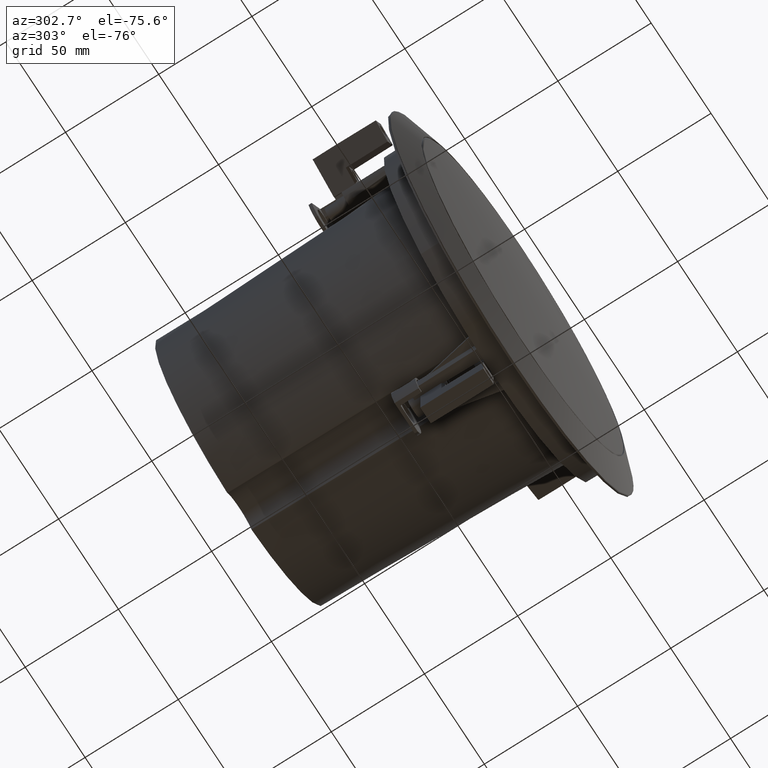
[diagram: clean part render]
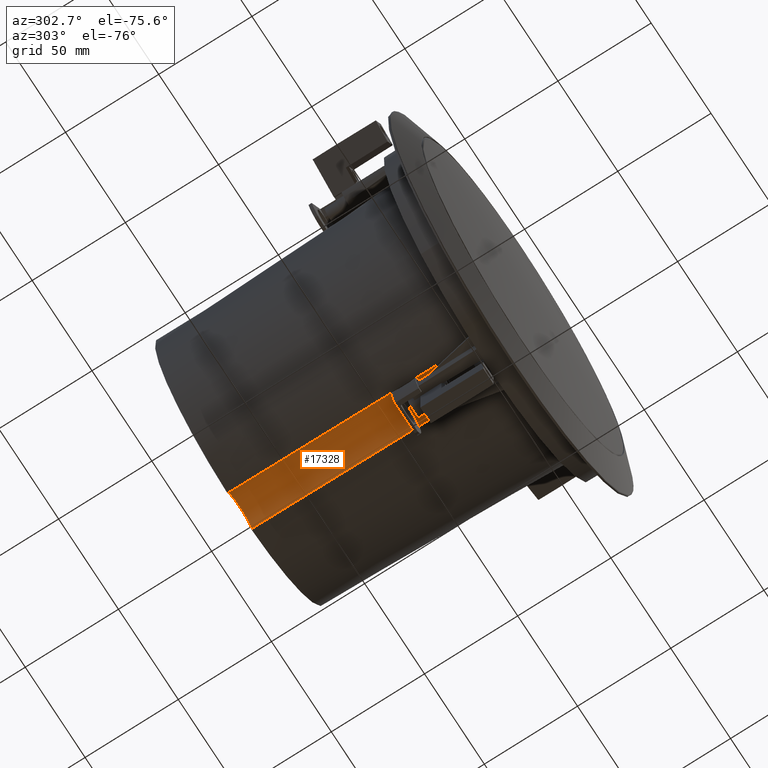
[diagram: same view with one face highlighted and labeled with its STEP entity id]
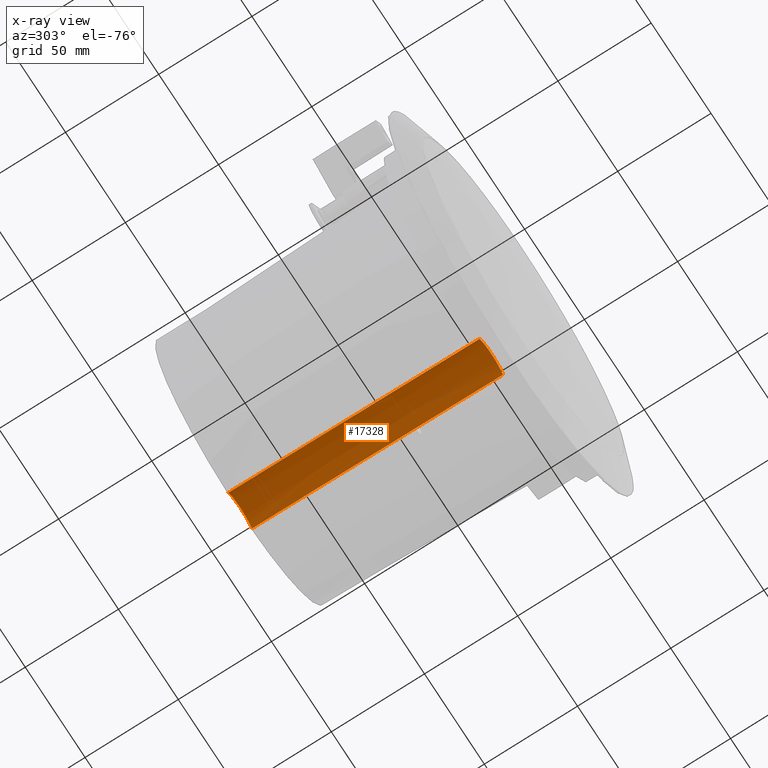
[diagram: x-ray of the same camera — body ghosted, the highlighted face saturated]
A machine part, auxiliary view. The second image highlights one B-rep face of the part: STEP entity #17328.
The next image is the same camera in x-ray: the body ghosted, the highlighted face saturated — about 2% of this face is hidden behind the body in this view.
In plain terms, the highlighted face is a freeform B-spline surface patch.
Its self-contained STEP definition (entity closure, byte-faithful):
#113 = CARTESIAN_POINT ( 'NONE',  ( -4.839189402952007946, -1.626303258728258623E-15, -69.36519278996399862 ) ) ;
#604 = CARTESIAN_POINT ( 'NONE',  ( -3.423557121188766317, 134.7149858649666214, -64.58662804208410080 ) ) ;
#616 = FACE_OUTER_BOUND ( 'NONE', #7353, .T. ) ;
#691 = CARTESIAN_POINT ( 'NONE',  ( 0.2501244078058433851, 134.7157053607339492, -64.06819588260950127 ) ) ;
#881 = CARTESIAN_POINT ( 'NONE',  ( -9.887865457490201848, 1.626321693163071915E-16, -74.02915081750236936 ) ) ;
#1186 = CARTESIAN_POINT ( 'NONE',  ( -7.728493577244043067, 1.788933584601082316E-15, -71.30815637181038369 ) ) ;
#1263 = CARTESIAN_POINT ( 'NONE',  ( -8.788407544057429632, 1.788933584601082316E-15, -72.37001803805209477 ) ) ;
#1462 = EDGE_CURVE ( 'NONE', #9962, #12218, #8389, .T. ) ;
#1798 = VERTEX_POINT ( 'NONE', #8481 ) ;
#1906 = CARTESIAN_POINT ( 'NONE',  ( 9.360104050637511719, 4.878909776184753190E-16, -73.17177890307527832 ) ) ;
#1947 = CARTESIAN_POINT ( 'NONE',  ( -0.9972680787748221531, 134.7157054546374013, -64.06812643824353870 ) ) ;
#1979 = B_SPLINE_CURVE_WITH_KNOTS ( 'NONE', 3,
 ( #8742, #4309, #1263, #1186, #2897, #8646, #5789, #13088, #113, #6929, #5891, #9790, #15598, #2616, #17256, #12736, #7012, #12831, #18691, #5613, #7502, #12061, #6067, #17543, #6251, #1906, #4499, #17907 ),
 .UNSPECIFIED., .F., .F.,
 ( 4, 2, 2, 2, 2, 2, 2, 2, 2, 2, 2, 2, 2, 4 ),
 ( 0.0003320815778961482196, 0.003309364713364581784, 0.004798006281098813122, 0.006286647848833044894, 0.007775289416567275798, 0.009263930984301508437, 0.01075257255203574021, 0.01224121411976997371, 0.01521849725523843552, 0.01819578039070689907, 0.01968442195844113257, 0.02117306352617536261, 0.02266170509390959611, 0.02415034666164382962 ),
 .UNSPECIFIED. ) ;
#2059 = CARTESIAN_POINT ( 'NONE',  ( 6.123241062972636151, 134.7132524646011689, -65.84114908314094805 ) ) ;
#2143 = CARTESIAN_POINT ( 'NONE',  ( -6.115727549763790627, 134.7132589719300881, -65.83634342606684697 ) ) ;
#2338 = CARTESIAN_POINT ( 'NONE',  ( -9.885558093869720508, 14.83182045151982820, -73.55899817543883046 ) ) ;
#2418 = CARTESIAN_POINT ( 'NONE',  ( 9.867001229435196308, 127.4559886287432988, -69.98726148090898391 ) ) ;
#2616 = CARTESIAN_POINT ( 'NONE',  ( -1.006083273466860994, 5.204170427930422861E-15, -68.33468858669769475 ) ) ;
#2649 = CARTESIAN_POINT ( 'NONE',  ( 8.403242768209999269, -2.796723514600030214, -71.57881013690000316 ) ) ;
#2897 = CARTESIAN_POINT ( 'NONE',  ( -7.348648249159249524, 3.740497495074990297E-15, -70.97466006749505141 ) ) ;
#3199 = CARTESIAN_POINT ( 'NONE',  ( 2.468547278013440760, 134.7153561202417791, -64.32390392234570697 ) ) ;
#3292 = CARTESIAN_POINT ( 'NONE',  ( -3.896588689990045040, 134.7147577211399039, -64.74729794012424122 ) ) ;
#3327 = CARTESIAN_POINT ( 'NONE',  ( -9.865737432637896376, 134.7078376317815582, -69.75716729557701967 ) ) ;
#3368 = CARTESIAN_POINT ( 'NONE',  ( 7.704769723789015146, 134.7116128410847580, -67.05316379467313936 ) ) ;
#3378 = CARTESIAN_POINT ( 'NONE',  ( -8.403242768209999269, 91.07336891721998029, -68.62882363862999568 ) ) ;
#3483 = B_SPLINE_SURFACE_WITH_KNOTS ( 'NONE', 3, 3, ( 
 ( #4894, #17864, #13814, #16783 ),
 ( #3751, #4991, #9255, #9532 ),
 ( #7823, #10592, #3378, #15048 ),
 ( #9142, #16596, #16480, #14937 ),
 ( #15142, #7730, #10670, #13598 ),
 ( #2649, #14383, #5269, #11460 ),
 ( #12764, #18322, #16996, #5537 ),
 ( #6668, #9730, #18616, #14216 ) ),
 .UNSPECIFIED., .F., .F., .F.,
 ( 4, 1, 1, 1, 1, 4 ),
 ( 4, 4 ),
 ( 0.0000000000000000000, 0.08032568937057009417, 0.3601085631235230178, 0.6398914368764769822, 0.9196743106294299475, 1.000000000000000000 ),
 ( 0.0000000000000000000, 1.000000000000000000 ),
 .UNSPECIFIED. ) ;
#3560 = CARTESIAN_POINT ( 'NONE',  ( 3.425275277422660025, 134.7149985396833074, -64.57859965497345911 ) ) ;
#3751 = CARTESIAN_POINT ( 'NONE',  ( -9.976210660033000721, -2.713413468800024653, -74.22977877789999468 ) ) ;
#3837 = CARTESIAN_POINT ( 'NONE',  ( -9.869685551943407020, 112.0529574244100104, -70.47598482789537400 ) ) ;
#4309 = CARTESIAN_POINT ( 'NONE',  ( -9.391220798877959908, -1.301042606982605124E-15, -73.15841826609003817 ) ) ;
#4499 = CARTESIAN_POINT ( 'NONE',  ( 9.638836358701198037, -9.757819552369524129E-16, -73.59254541199905475 ) ) ;
#4894 = CARTESIAN_POINT ( 'NONE',  ( -10.27188773079000050, -2.693989472500018856, -74.84786036300999967 ) ) ;
#4991 = CARTESIAN_POINT ( 'NONE',  ( -9.976210660033000721, 44.22163274706998948, -72.75478552875999583 ) ) ;
#5240 = CARTESIAN_POINT ( 'NONE',  ( -9.884387761990073074, 22.24772982079445427, -73.32389491956773497 ) ) ;
#5269 = CARTESIAN_POINT ( 'NONE',  ( 8.403242768209999269, 91.07336891721998029, -68.62882363862999568 ) ) ;
#5431 = CARTESIAN_POINT ( 'NONE',  ( 9.880696121411476796, 45.63790877251823019, -72.58236579934452948 ) ) ;
#5537 = CARTESIAN_POINT ( 'NONE',  ( 9.976210660033000721, 138.0917251789579723, -69.80479903047999812 ) ) ;
#5613 = CARTESIAN_POINT ( 'NONE',  ( 6.134114374389133317, 4.716279450311940344E-15, -70.08147228196445155 ) ) ;
#5707 = VERTEX_POINT ( 'NONE', #8172 ) ;
#5738 = CARTESIAN_POINT ( 'NONE',  ( -9.335715033577923094, 134.7090364111077463, -68.90382484216706871 ) ) ;
#5789 = CARTESIAN_POINT ( 'NONE',  ( -6.147054055668925265, 5.041540102057595618E-15, -70.08980133827847681 ) ) ;
#5891 = CARTESIAN_POINT ( 'NONE',  ( -3.440550504086456129, 5.204170427930416550E-15, -68.81694897095601959 ) ) ;
#6067 = CARTESIAN_POINT ( 'NONE',  ( 7.719730091710763631, 1.626303258728264540E-16, -71.30034430120200284 ) ) ;
#6251 = CARTESIAN_POINT ( 'NONE',  ( 8.750567258948050764, 4.878909776184766995E-16, -72.37563252952342907 ) ) ;
#6365 = CARTESIAN_POINT ( 'NONE',  ( 1.983598773064808363, 134.7154868800086547, -64.22864942941282607 ) ) ;
#6550 = CARTESIAN_POINT ( 'NONE',  ( 9.872026562536182936, 98.12047993639468757, -70.91790950467866139 ) ) ;
#6668 = CARTESIAN_POINT ( 'NONE',  ( 10.27188773079000050, -2.693989472500018856, -74.84786036300999967 ) ) ;
#6837 = CARTESIAN_POINT ( 'NONE',  ( -9.882047098230746229, 37.07954855953845907, -72.85368840781934807 ) ) ;
#6929 = CARTESIAN_POINT ( 'NONE',  ( -3.912068594470100358, -1.626303258728251918E-15, -68.97755959733346742 ) ) ;
#7012 = CARTESIAN_POINT ( 'NONE',  ( 1.981375865008340176, -8.131516293641254659E-16, -68.42720938291037669 ) ) ;
#7162 = CARTESIAN_POINT ( 'NONE',  ( -9.865737432637896376, 134.7078376317815582, -69.75716729557701967 ) ) ;
#7353 = EDGE_LOOP ( 'NONE', ( #15586, #17818, #17944, #8642 ) ) ;
#7502 = CARTESIAN_POINT ( 'NONE',  ( 6.553774256420170197, 8.131516293641333545E-16, -70.36295678658539998 ) ) ;
#7618 = CARTESIAN_POINT ( 'NONE',  ( 6.534921249510770913, 134.7128808281630370, -66.11632471258241139 ) ) ;
#7730 = CARTESIAN_POINT ( 'NONE',  ( 3.762305898749000121, 44.03241071003997575, -66.73364268083000184 ) ) ;
#7808 = CARTESIAN_POINT ( 'NONE',  ( 8.760507955452085938, 134.7101713187356040, -68.10434754094239906 ) ) ;
#7823 = CARTESIAN_POINT ( 'NONE',  ( -8.403242768209999269, -2.796723514600030214, -71.57881013690000316 ) ) ;
#7903 = CARTESIAN_POINT ( 'NONE',  ( 0.9992407450295203164, 134.7156505959461299, -64.10862454341747707 ) ) ;
#8172 = CARTESIAN_POINT ( 'NONE',  ( 9.887865457490189414, 1.392522165286069757E-14, -74.02915081750232673 ) ) ;
#8389 = B_SPLINE_CURVE_WITH_KNOTS ( 'NONE', 3,
 ( #881, #18508, #2338, #5240, #6837, #12654, #11037, #16866, #3837, #9611 ),
 .UNSPECIFIED., .F., .F.,
 ( 4, 3, 3, 4 ),
 ( 7.488830061736172647E-16, 0.02225890563695883534, 0.06677671691204242754, 0.1347755610446326746 ),
 .UNSPECIFIED. ) ;
#8481 = CARTESIAN_POINT ( 'NONE',  ( 9.865737432637885718, 134.7078376317815298, -69.75716729557700546 ) ) ;
#8601 = B_SPLINE_CURVE_WITH_KNOTS ( 'NONE', 3,
 ( #7162, #14662, #5738, #11533, #17366, #15928, #8683, #14489, #2143, #12288, #16193, #12096, #3292, #604, #16575, #9128, #1947, #691, #12187, #7903, #17750, #6365, #3199, #3560, #8954, #10656, #14923, #2059, #7618, #11896, #3368, #7808, #15029, #17854 ),
 .UNSPECIFIED., .F., .F.,
 ( 4, 2, 2, 2, 2, 2, 2, 2, 2, 2, 2, 2, 2, 2, 2, 2, 4 ),
 ( 1.734723475976807094E-17, 0.001503994263850131664, 0.003007988527700245981, 0.004511982791550362901, 0.006015977055400478953, 0.007519971319250595004, 0.008271968451175644790, 0.009023965583100692842, 0.01203195411080089719, 0.01278395124272594871, 0.01353594837465100197, 0.01503994263850110327, 0.01654393690235120631, 0.01804793116620130936, 0.01955192543005141240, 0.02105591969390151544, 0.02406390822160172499 ),
 .UNSPECIFIED. ) ;
#8642 = ORIENTED_EDGE ( 'NONE', *, *, #16489, .F. ) ;
#8646 = CARTESIAN_POINT ( 'NONE',  ( -6.559200349315986500, 3.740497495074989508E-15, -70.36686182530661426 ) ) ;
#8683 = CARTESIAN_POINT ( 'NONE',  ( -7.325749182903125600, 134.7120617304434234, -66.72184491411680085 ) ) ;
#8742 = CARTESIAN_POINT ( 'NONE',  ( -9.887865457490201848, 1.626321693163071915E-16, -74.02915081750236936 ) ) ;
#8954 = CARTESIAN_POINT ( 'NONE',  ( 3.899382174373913656, 134.7147675622479426, -64.73944438619399477 ) ) ;
#9128 = CARTESIAN_POINT ( 'NONE',  ( -1.978338117525116013, 134.7155386285560041, -64.19387676111044527 ) ) ;
#9142 = CARTESIAN_POINT ( 'NONE',  ( -3.762305898749000121, -2.902635505900002855, -68.20863592997000069 ) ) ;
#9255 = CARTESIAN_POINT ( 'NONE',  ( -9.976210660033000721, 91.15667896299999029, -71.27979227961999698 ) ) ;
#9490 = CARTESIAN_POINT ( 'NONE',  ( 9.874510754352067821, 83.28866855631042654, -71.38834735839076018 ) ) ;
#9532 = CARTESIAN_POINT ( 'NONE',  ( -9.976210660033000721, 138.0917251789579723, -69.80479903047999812 ) ) ;
#9611 = CARTESIAN_POINT ( 'NONE',  ( -9.865737432637896376, 134.7078376317815582, -69.75716729557701967 ) ) ;
#9730 = CARTESIAN_POINT ( 'NONE',  ( 10.27188773079000050, 44.24105674339999439, -73.37286711387000082 ) ) ;
#9790 = CARTESIAN_POINT ( 'NONE',  ( -2.482012068469721111, 5.204170427930421283E-15, -68.56041579451762402 ) ) ;
#9962 = VERTEX_POINT ( 'NONE', #11550 ) ;
#10592 = CARTESIAN_POINT ( 'NONE',  ( -8.403242768209999269, 44.13832270127998925, -70.10381688776999454 ) ) ;
#10656 = CARTESIAN_POINT ( 'NONE',  ( 4.822784014059676494, 134.7142312267953344, -65.12402111926239456 ) ) ;
#10670 = CARTESIAN_POINT ( 'NONE',  ( 3.762305898749000121, 90.96745692597998811, -65.25864943169000298 ) ) ;
#11037 = CARTESIAN_POINT ( 'NONE',  ( -9.877228679767645403, 66.74317899878070648, -71.91305408198843452 ) ) ;
#11424 = EDGE_CURVE ( 'NONE', #12218, #1798, #8601, .T. ) ;
#11460 = CARTESIAN_POINT ( 'NONE',  ( 8.403242768209999269, 138.0084151331739974, -67.15383038948999683 ) ) ;
#11533 = CARTESIAN_POINT ( 'NONE',  ( -8.728573119572683225, 134.7101495941253120, -68.11637892425217444 ) ) ;
#11550 = CARTESIAN_POINT ( 'NONE',  ( -9.887865457490201848, 1.626321693163071915E-16, -74.02915081750236936 ) ) ;
#11865 = EDGE_CURVE ( 'NONE', #1798, #5707, #16834, .T. ) ;
#11896 = CARTESIAN_POINT ( 'NONE',  ( 7.325185085548724828, 134.7120621694397471, -66.72151884787614051 ) ) ;
#12061 = CARTESIAN_POINT ( 'NONE',  ( 7.346168308152050130, 8.131516293641275366E-16, -70.97248093369540811 ) ) ;
#12096 = CARTESIAN_POINT ( 'NONE',  ( -4.129215304101543360, 134.7146339706887375, -64.83524231305325713 ) ) ;
#12187 = CARTESIAN_POINT ( 'NONE',  ( 0.5013743358703388608, 134.7156943714006445, -64.07633289649852770 ) ) ;
#12218 = VERTEX_POINT ( 'NONE', #3327 ) ;
#12288 = CARTESIAN_POINT ( 'NONE',  ( -5.258797042571266012, 134.7139336593771759, -65.34060962388075211 ) ) ;
#12547 = CARTESIAN_POINT ( 'NONE',  ( 9.865737432637885718, 134.7078376317815298, -69.75716729557700546 ) ) ;
#12654 = CARTESIAN_POINT ( 'NONE',  ( -9.879661627212254160, 51.91136499500368018, -72.38340945772638690 ) ) ;
#12736 = CARTESIAN_POINT ( 'NONE',  ( 0.9960004601206340347, 4.228388472693464137E-15, -68.30161487276352261 ) ) ;
#12764 = CARTESIAN_POINT ( 'NONE',  ( 9.976210660033000721, -2.713413468800024653, -74.22977877789999468 ) ) ;
#12831 = CARTESIAN_POINT ( 'NONE',  ( 3.925109957406396788, -8.131516293641248742E-16, -68.94585918400029811 ) ) ;
#13088 = CARTESIAN_POINT ( 'NONE',  ( -5.287929186591875386, 5.041540102057597985E-15, -69.58933852176927815 ) ) ;
#13598 = CARTESIAN_POINT ( 'NONE',  ( 3.762305898749000121, 137.9025031419339768, -63.78365618254999703 ) ) ;
#13659 = CARTESIAN_POINT ( 'NONE',  ( 9.884332301845955016, 22.81895703917169627, -73.30584176660327955 ) ) ;
#13814 = CARTESIAN_POINT ( 'NONE',  ( -10.27188773079000050, 91.17610295932998099, -71.89787386473000197 ) ) ;
#14216 = CARTESIAN_POINT ( 'NONE',  ( 10.27188773079000050, 138.1111491752890004, -70.42288061559000312 ) ) ;
#14383 = CARTESIAN_POINT ( 'NONE',  ( 8.403242768209999269, 44.13832270127998925, -70.10381688776999454 ) ) ;
#14489 = CARTESIAN_POINT ( 'NONE',  ( -6.531253356418793565, 134.7128844819080484, -66.11362213459115367 ) ) ;
#14662 = CARTESIAN_POINT ( 'NONE',  ( -9.615499897663783102, 134.7084403240077677, -69.32239977955386223 ) ) ;
#14923 = CARTESIAN_POINT ( 'NONE',  ( 5.267169381970106201, 134.7139276484149093, -65.34500236249647287 ) ) ;
#14937 = CARTESIAN_POINT ( 'NONE',  ( -3.762305898749000121, 137.9025031419339768, -63.78365618254999703 ) ) ;
#15029 = CARTESIAN_POINT ( 'NONE',  ( 9.365188091734262699, 134.7090431951141056, -68.88750322374129098 ) ) ;
#15048 = CARTESIAN_POINT ( 'NONE',  ( -8.403242768209999269, 138.0084151331739974, -67.15383038948999683 ) ) ;
#15142 = CARTESIAN_POINT ( 'NONE',  ( 3.762305898749000121, -2.902635505900002855, -68.20863592997000069 ) ) ;
#15580 = CARTESIAN_POINT ( 'NONE',  ( 9.887865457490189414, 1.392522165286069757E-14, -74.02915081750232673 ) ) ;
#15586 = ORIENTED_EDGE ( 'NONE', *, *, #1462, .T. ) ;
#15598 = CARTESIAN_POINT ( 'NONE',  ( -1.995081089418134557, 5.204170427930422072E-15, -68.46412033571373001 ) ) ;
#15928 = CARTESIAN_POINT ( 'NONE',  ( -7.699475829254923909, 134.7116192280734310, -67.04845680359790094 ) ) ;
#16193 = CARTESIAN_POINT ( 'NONE',  ( -4.815891063114086990, 134.7142354256624230, -65.12099697713509272 ) ) ;
#16480 = CARTESIAN_POINT ( 'NONE',  ( -3.762305898749000121, 90.96745692597998811, -65.25864943169000298 ) ) ;
#16489 = EDGE_CURVE ( 'NONE', #9962, #5707, #1979, .T. ) ;
#16575 = CARTESIAN_POINT ( 'NONE',  ( -3.182867214933335021, 134.7150893155885285, -64.51394989510707489 ) ) ;
#16596 = CARTESIAN_POINT ( 'NONE',  ( -3.762305898749000121, 44.03241071003997575, -66.73364268083000184 ) ) ;
#16783 = CARTESIAN_POINT ( 'NONE',  ( -10.27188773079000050, 138.1111491752890004, -70.42288061559000312 ) ) ;
#16834 = B_SPLINE_CURVE_WITH_KNOTS ( 'NONE', 3,
 ( #12547, #2418, #18203, #18105, #6550, #9490, #16850, #5431, #13659, #15580 ),
 .UNSPECIFIED., .F., .F.,
 ( 4, 3, 3, 4 ),
 ( 0.0004924100520879604471, 0.02225890563698970648, 0.06677671691226874651, 0.1352679710965976612 ),
 .UNSPECIFIED. ) ;
#16850 = CARTESIAN_POINT ( 'NONE',  ( 9.876947364214320402, 68.45685474003428794, -71.85870862895004052 ) ) ;
#16866 = CARTESIAN_POINT ( 'NONE',  ( -9.873512468001488074, 89.39807104605083055, -71.19460856625565270 ) ) ;
#16996 = CARTESIAN_POINT ( 'NONE',  ( 9.976210660033000721, 91.15667896299999029, -71.27979227961999698 ) ) ;
#17256 = CARTESIAN_POINT ( 'NONE',  ( -0.5011195588987388261, 4.228388472693467293E-15, -68.30188320300895555 ) ) ;
#17328 = ADVANCED_FACE ( 'NONE', ( #616 ), #3483, .F. ) ;
#17366 = CARTESIAN_POINT ( 'NONE',  ( -8.400887139355241118, 134.7106631768345437, -67.74572443835887725 ) ) ;
#17543 = CARTESIAN_POINT ( 'NONE',  ( 8.421925220645448462, 1.626303258728260349E-16, -72.00192453507145274 ) ) ;
#17750 = CARTESIAN_POINT ( 'NONE',  ( 1.246539850432887508, 134.7156178684224983, -64.13273509057211186 ) ) ;
#17818 = ORIENTED_EDGE ( 'NONE', *, *, #11424, .T. ) ;
#17854 = CARTESIAN_POINT ( 'NONE',  ( 9.865737432637885718, 134.7078376317815298, -69.75716729557700546 ) ) ;
#17864 = CARTESIAN_POINT ( 'NONE',  ( -10.27188773079000050, 44.24105674339999439, -73.37286711387000082 ) ) ;
#17907 = CARTESIAN_POINT ( 'NONE',  ( 9.887865457490189414, 1.392522165286069757E-14, -74.02915081750232673 ) ) ;
#17944 = ORIENTED_EDGE ( 'NONE', *, *, #11865, .T. ) ;
#18105 = CARTESIAN_POINT ( 'NONE',  ( 9.869491895193595710, 112.9522887417585082, -70.44739077053195331 ) ) ;
#18203 = CARTESIAN_POINT ( 'NONE',  ( 9.868252597394759462, 120.2041389930322168, -70.21733579576604711 ) ) ;
#18322 = CARTESIAN_POINT ( 'NONE',  ( 9.976210660033000721, 44.22163274706998948, -72.75478552875999583 ) ) ;
#18508 = CARTESIAN_POINT ( 'NONE',  ( -9.886717220696670694, 7.415910506185660722, -73.79408331724046377 ) ) ;
#18616 = CARTESIAN_POINT ( 'NONE',  ( 10.27188773079000050, 91.17610295932998099, -71.89787386473000197 ) ) ;
#18691 = CARTESIAN_POINT ( 'NONE',  ( 4.842484074321431464, 4.716279450311951388E-15, -69.33147676563423545 ) ) ;